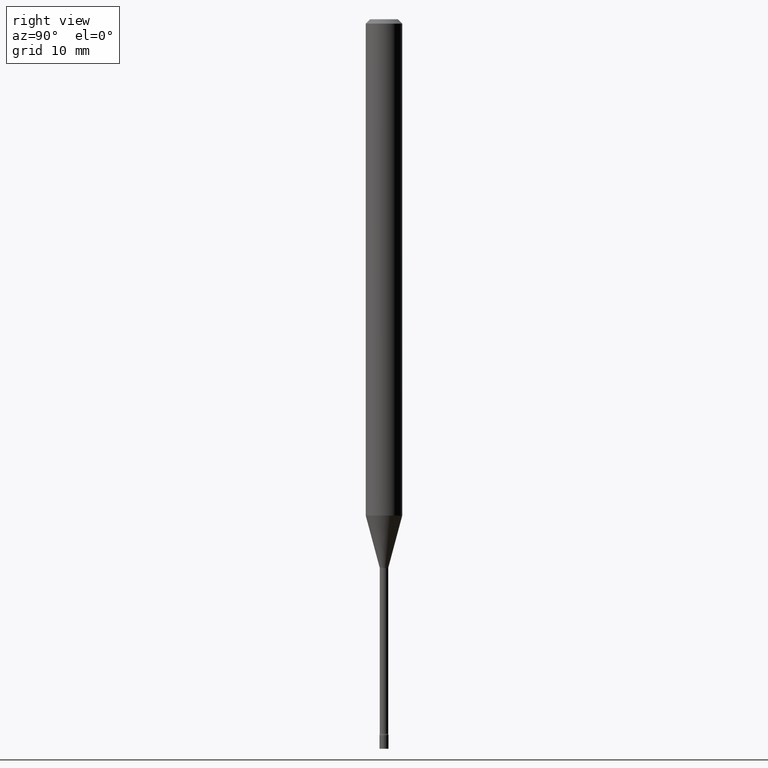
[diagram: clean part render]
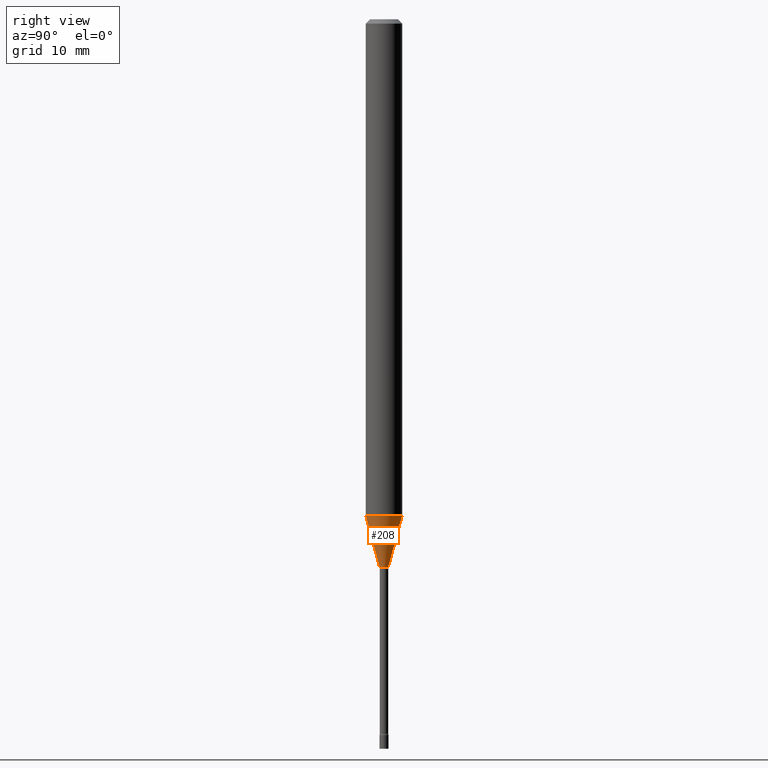
[diagram: same view with one face highlighted and labeled with its STEP entity id]
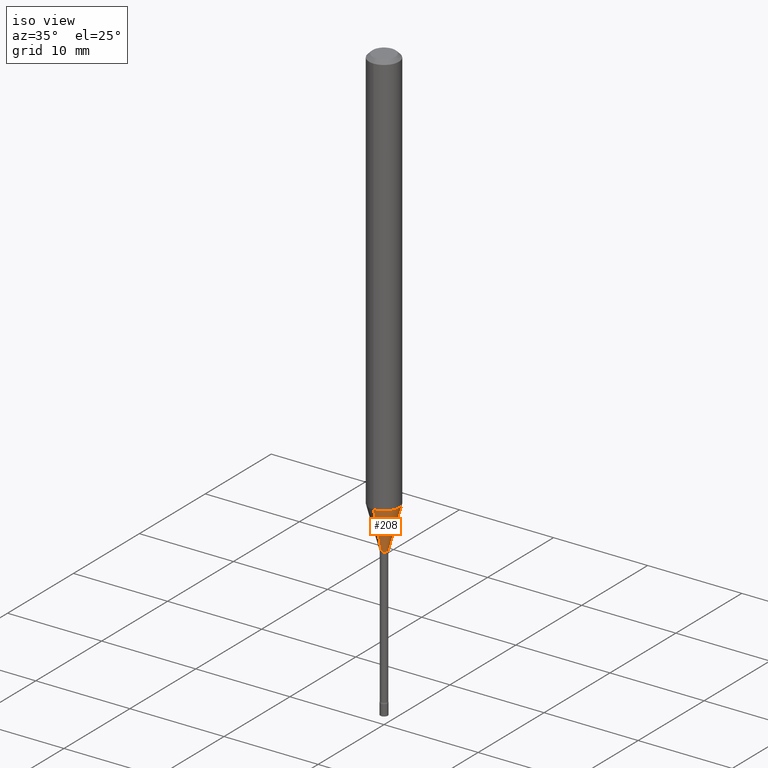
[diagram: same view with one face highlighted and labeled with its STEP entity id]
A machine part, right view. The second image highlights one B-rep face of the part: STEP entity #208.
A second angle (iso view) of the same face is appended — the face is thin or edge-on in the first view.
In plain terms, the highlighted conical surface has half-angle 15 deg.
Its self-contained STEP definition (entity closure, byte-faithful):
#29 = CARTESIAN_POINT ( 'NONE',  ( 4.592832608703820442E-29, -6.557302037693482637E-15, -1.878092501787273161 ) ) ;
#34 = ORIENTED_EDGE ( 'NONE', *, *, #162, .T. ) ;
#42 = CARTESIAN_POINT ( 'NONE',  ( 4.440892098501039328E-16, 0.06249999999999404643, -1.701048163777073130 ) ) ;
#52 = LINE ( 'NONE', #213, #329 ) ;
#70 = VERTEX_POINT ( 'NONE', #204 ) ;
#104 = EDGE_CURVE ( 'NONE', #235, #196, #276, .T. ) ;
#150 = CONICAL_SURFACE ( 'NONE', #351, 0.01506111260566398054, 0.2617993877991499074 ) ;
#162 = EDGE_CURVE ( 'NONE', #418, #70, #236, .T. ) ;
#188 = ORIENTED_EDGE ( 'NONE', *, *, #230, .F. ) ;
#196 = VERTEX_POINT ( 'NONE', #42 ) ;
#204 = CARTESIAN_POINT ( 'NONE',  ( 2.755524256971723102E-16, 0.01506111260565742675, -1.878092501787273161 ) ) ;
#208 = ADVANCED_FACE ( 'NONE', ( #464 ), #150, .T. ) ;
#213 = CARTESIAN_POINT ( 'NONE',  ( 1.070156415442400836E-16, 0.01506111260565742502, -1.878092501787273161 ) ) ;
#223 = VECTOR ( 'NONE', #468, 39.37007874015748143 ) ;
#228 = CARTESIAN_POINT ( 'NONE',  ( -1.051711872097357942E-16, -0.01506111260567053779, -1.878092501787273161 ) ) ;
#230 = EDGE_CURVE ( 'NONE', #418, #235, #303, .T. ) ;
#235 = VERTEX_POINT ( 'NONE', #424 ) ;
#236 = CIRCLE ( 'NONE', #319, 0.01506111260566398054 ) ;
#237 = DIRECTION ( 'NONE',  ( -6.982962677686265922E-15, -1.000000000000000000, 0.000000000000000000 ) ) ;
#239 = ORIENTED_EDGE ( 'NONE', *, *, #104, .F. ) ;
#256 = EDGE_LOOP ( 'NONE', ( #34, #336, #239, #188 ) ) ;
#275 = CARTESIAN_POINT ( 'NONE',  ( 4.592832608703820442E-29, -6.557302037693482637E-15, -1.878092501787273161 ) ) ;
#276 = CIRCLE ( 'NONE', #338, 0.06250000000000000000 ) ;
#284 = EDGE_CURVE ( 'NONE', #70, #196, #52, .T. ) ;
#303 = LINE ( 'NONE', #228, #223 ) ;
#319 = AXIS2_PLACEMENT_3D ( 'NONE', #29, #477, #345 ) ;
#326 = CARTESIAN_POINT ( 'NONE',  ( 4.159874696340177059E-29, -5.939157192702308277E-15, -1.701048163777072908 ) ) ;
#329 = VECTOR ( 'NONE', #371, 39.37007874015748854 ) ;
#336 = ORIENTED_EDGE ( 'NONE', *, *, #284, .T. ) ;
#338 = AXIS2_PLACEMENT_3D ( 'NONE', #326, #484, #488 ) ;
#345 = DIRECTION ( 'NONE',  ( -6.982962677686265922E-15, -1.000000000000000000, 0.000000000000000000 ) ) ;
#351 = AXIS2_PLACEMENT_3D ( 'NONE', #275, #435, #237 ) ;
#371 = DIRECTION ( 'NONE',  ( 1.839019923739597554E-15, 0.2588190451025245697, 0.9659258262890670910 ) ) ;
#390 = CARTESIAN_POINT ( 'NONE',  ( -1.051711872097357942E-16, -0.01506111260567053779, -1.878092501787273161 ) ) ;
#418 = VERTEX_POINT ( 'NONE', #390 ) ;
#424 = CARTESIAN_POINT ( 'NONE',  ( -4.364351673553500570E-16, -0.06250000000000595357, -1.701048163777072464 ) ) ;
#435 = DIRECTION ( 'NONE',  ( -2.445477315059340608E-29, 3.491469153650990726E-15, 1.000000000000000000 ) ) ;
#464 = FACE_OUTER_BOUND ( 'NONE', #256, .T. ) ;
#468 = DIRECTION ( 'NONE',  ( -1.807323732225327773E-15, -0.2588190451025178529, 0.9659258262890690894 ) ) ;
#477 = DIRECTION ( 'NONE',  ( -2.445477315059340608E-29, 3.491469153650990726E-15, 1.000000000000000000 ) ) ;
#484 = DIRECTION ( 'NONE',  ( -2.445477315059340608E-29, 3.491469153650990726E-15, 1.000000000000000000 ) ) ;
#488 = DIRECTION ( 'NONE',  ( -6.982962677686265922E-15, -1.000000000000000000, 4.370956789862821150E-15 ) ) ;